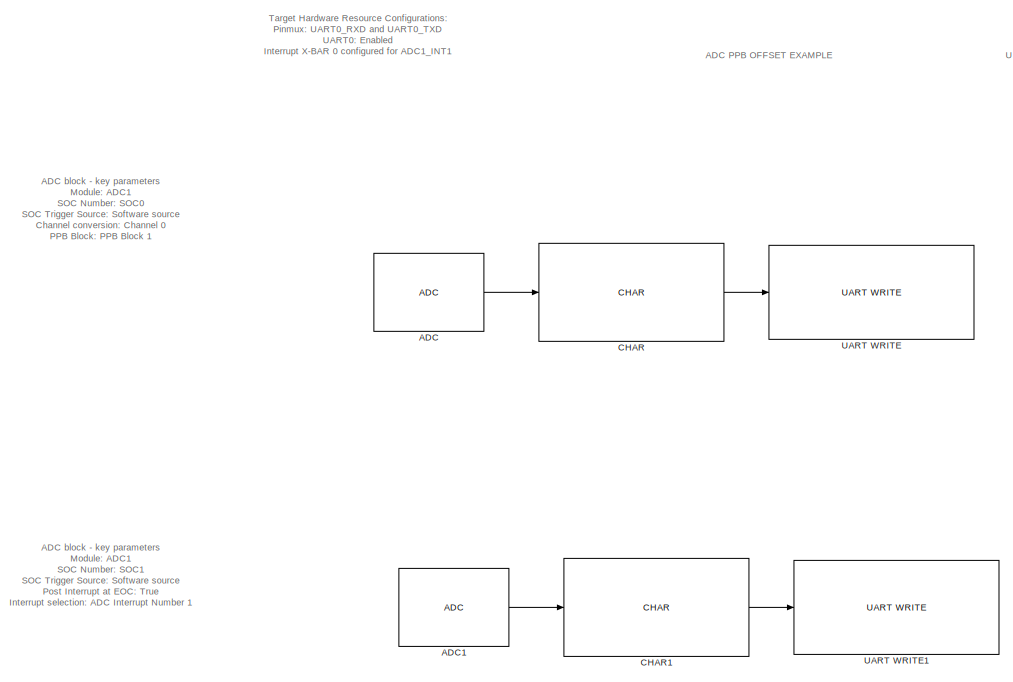
[diagram: root canvas - part 1/2, left side, full height]
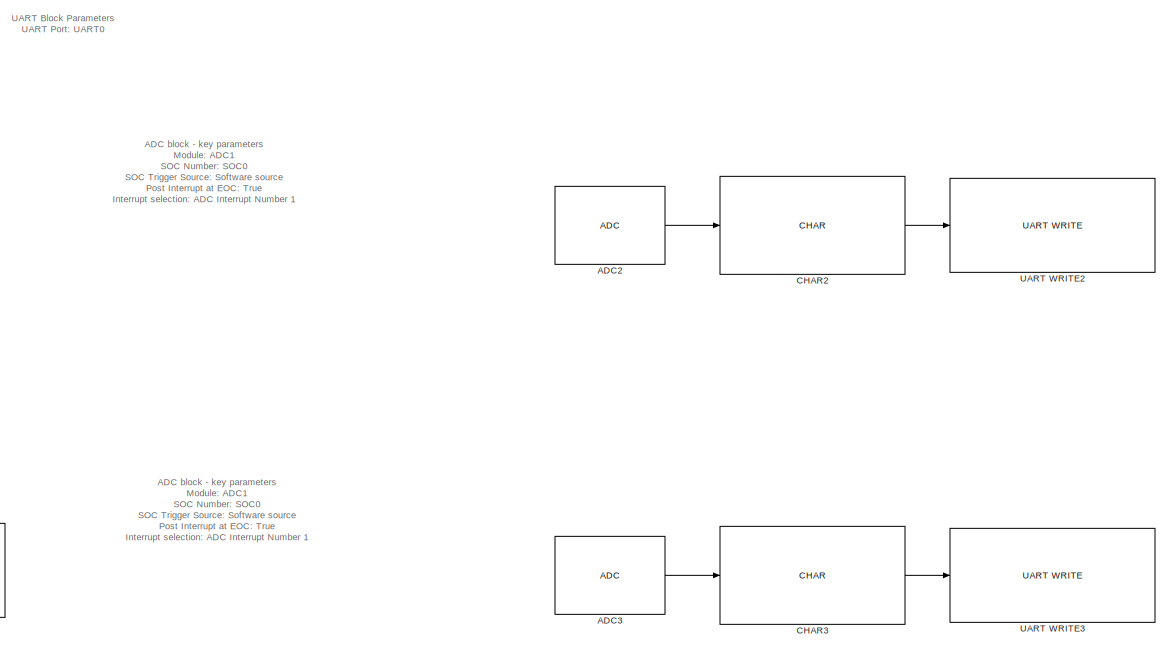
[diagram: root canvas - part 2/2, right side, full height]
MODEL slx_2da9ac283403
KIND model
CONFIG AbsTol = auto
CONFIG EnableMultiTasking = off
CONFIG FixedStep = auto
CONFIG MaxStep = auto
CONFIG MinStep = auto
CONFIG RelTol = 1e-3
CONFIG SampleTimeConstraint = Unconstrained
CONFIG SolverName = FixedStepAuto
CONFIG StartTime = 0.0
CONFIG StopTime = 10.0
BLOCK [Reference] ADC  REF=peripheral_library_blocks_am263x/ADC
  SourceBlock = peripheral_library_blocks_am263x/ADC
  SourceType = ADC_AM263X
BLOCK [Reference] ADC1  REF=peripheral_library_blocks_am263x/ADC
  SourceBlock = peripheral_library_blocks_am263x/ADC
  SourceType = ADC_AM263X
BLOCK [Reference] ADC2  REF=peripheral_library_blocks_am263x/ADC
  SourceBlock = peripheral_library_blocks_am263x/ADC
  SourceType = ADC_AM263X
BLOCK [Reference] ADC3  REF=peripheral_library_blocks_am263x/ADC
  SourceBlock = peripheral_library_blocks_am263x/ADC
  SourceType = ADC_AM263X
BLOCK [Reference] CHAR  REF=peripheral_library_blocks_am263x/CHAR
  SourceBlock = peripheral_library_blocks_am263x/CHAR
  SourceType = CHAR
BLOCK [Reference] CHAR1  REF=peripheral_library_blocks_am263x/CHAR
  SourceBlock = peripheral_library_blocks_am263x/CHAR
  SourceType = CHAR
BLOCK [Reference] CHAR2  REF=peripheral_library_blocks_am263x/CHAR
  SourceBlock = peripheral_library_blocks_am263x/CHAR
  SourceType = CHAR
BLOCK [Reference] CHAR3  REF=peripheral_library_blocks_am263x/CHAR
  SourceBlock = peripheral_library_blocks_am263x/CHAR
  SourceType = CHAR
BLOCK [Reference] UART WRITE  REF=peripheral_library_blocks_am263x/UART WRITE
  SourceBlock = peripheral_library_blocks_am263x/UART WRITE
  SourceType = UART_WRITE_AM263X
BLOCK [Reference] UART WRITE1  REF=peripheral_library_blocks_am263x/UART WRITE
  SourceBlock = peripheral_library_blocks_am263x/UART WRITE
  SourceType = UART_WRITE_AM263X
BLOCK [Reference] UART WRITE2  REF=peripheral_library_blocks_am263x/UART WRITE
  SourceBlock = peripheral_library_blocks_am263x/UART WRITE
  SourceType = UART_WRITE_AM263X
BLOCK [Reference] UART WRITE3  REF=peripheral_library_blocks_am263x/UART WRITE
  SourceBlock = peripheral_library_blocks_am263x/UART WRITE
  SourceType = UART_WRITE_AM263X
ANNOTATION (root): UART Block Parameters UART Port: UART0
ANNOTATION (root): ADC block - key parameters Module: ADC1 SOC Number: SOC0 SOC Trigger Source: Software source Channel conversion: Channel 0 PPB Block: PPB Block 1 PPB SOC: SOC0 PPB Enable ADC Event Trip HIgh: True PPB Enable Interrupt Event ADC Trip High: True Enable Two's complement: True PPB Calibration offset: -100 PPB Reference offset: 0 PPB High trip limit: 0 PPB Low trip limit: 0
ANNOTATION (root): ADC block - key parameters Module: ADC1 SOC Number: SOC0 SOC Trigger Source: Software source Post Interrupt at EOC: True Interrupt selection: ADC Interrupt Number 1 Interrupt source: SOC1 Channel conversion: Channel 0 PPB Block: PPB Block 2 PPB SOC: SOC 0 PPB Calibration offset: 50 PPB Reference offset: 50 PPB High trip limit: 0 PPB Low trip limit: 0
ANNOTATION (root): ADC block - key parameters Module: ADC1 SOC Number: SOC0 SOC Trigger Source: Software source Post Interrupt at EOC: True Interrupt selection: ADC Interrupt Number 1 Interrupt source: SOC1 Channel conversion: Channel 0 PPB Block: PPB Block 3 PPB SOC: SOC 0 PPB Calibration offset: 100 PPB Reference offset: 50 PPB High trip limit: 0 PPB Low trip limit: 0
ANNOTATION (root): ADC block - key parameters Module: ADC1 SOC Number: SOC1 SOC Trigger Source: Software source Post Interrupt at EOC: True Interrupt selection: ADC Interrupt Number 1 Interrupt source: SOC1 Channel conversion: Channel 0 PPB Block: PPB Block 1 PPB SOC: SOC 0 PPB Calibration offset: 0 PPB Reference offset: 0 PPB High trip limit: 0 PPB Low trip limit: 0
ANNOTATION (root): ADC PPB OFFSET EXAMPLE
ANNOTATION (root): Target Hardware Resource Configurations: Pinmux: UART0_RXD and UART0_TXD UART0: Enabled Interrupt X-BAR 0 configured for ADC1_INT1
LINE ADC1:1 -> CHAR1:1
LINE ADC2:1 -> CHAR2:1
LINE ADC3:1 -> CHAR3:1
LINE ADC:1 -> CHAR:1
LINE CHAR1:1 -> UART WRITE1:1
LINE CHAR2:1 -> UART WRITE2:1
LINE CHAR3:1 -> UART WRITE3:1
LINE CHAR:1 -> UART WRITE:1
